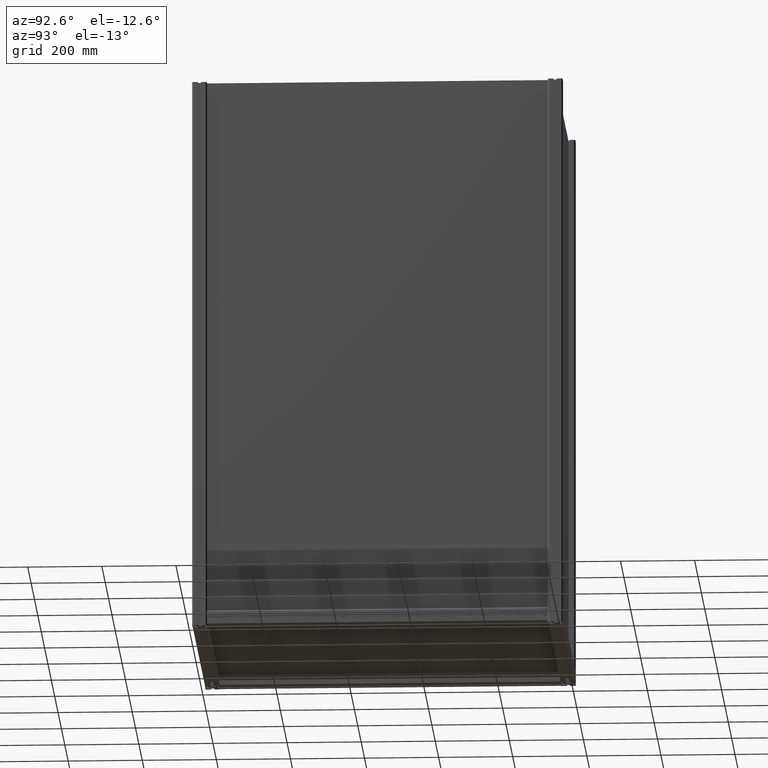
[diagram: clean part render]
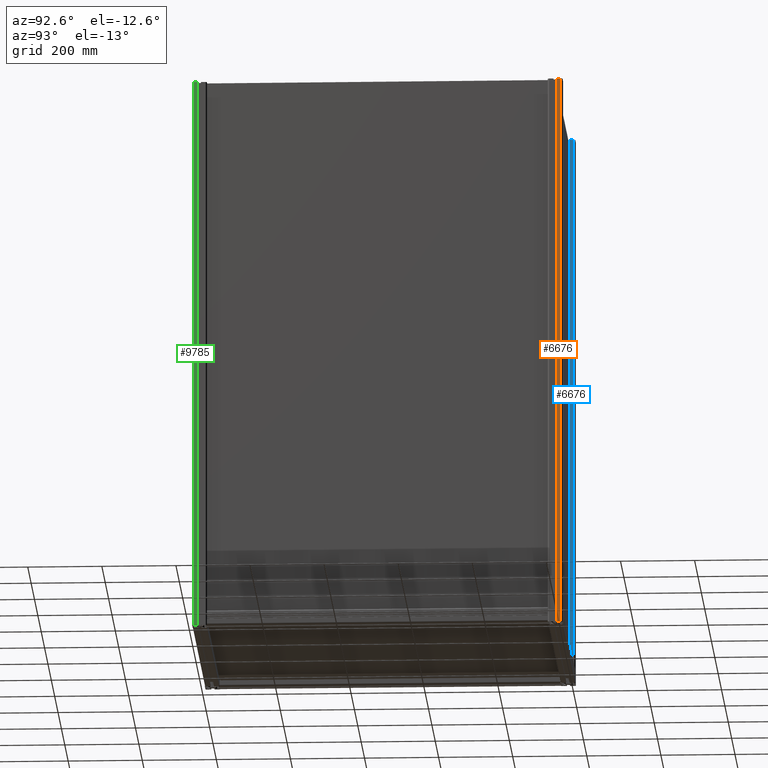
[diagram: same view with three faces highlighted in distinct colors, each labeled with its STEP entity id]
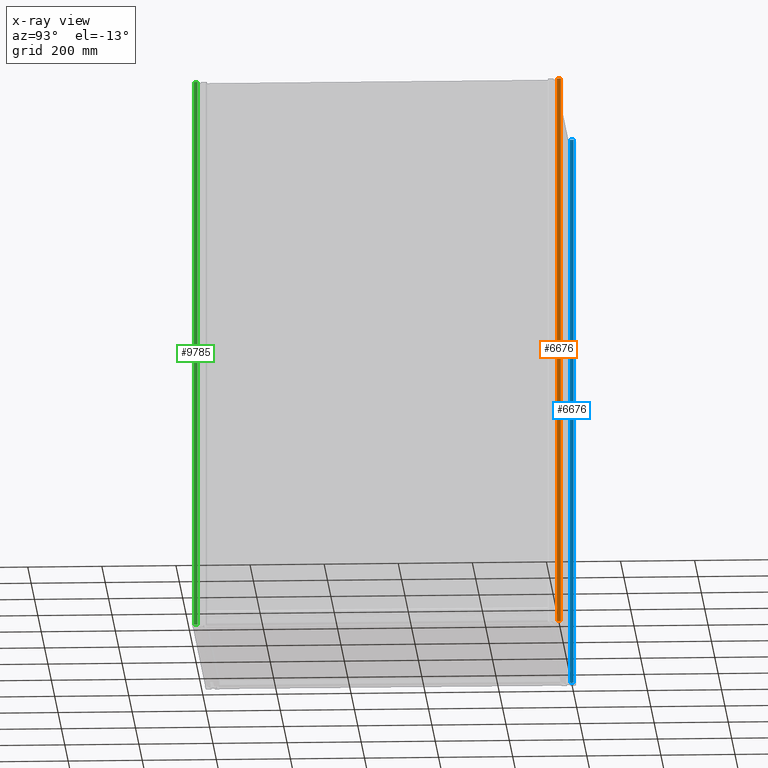
[diagram: x-ray of the same camera — body ghosted, the three highlighted faces saturated]
A machine part, auxiliary view with three faces highlighted in distinct colors.
The next image is the same camera in x-ray (body ghosted, the three faces saturated) — at least one of them is partly hidden behind the body in this view.
Their STEP definitions:

[orange] entity #6676 — the highlighted planar face has unit normal (-1, 0, 0).
#217 = DIRECTION ( 'NONE',  ( 0.000000000000000000, 0.000000000000000000, -1.000000000000000000 ) ) ;
#278 = AXIS2_PLACEMENT_3D ( 'NONE', #14896, #3072, #9593 ) ;
#703 = VECTOR ( 'NONE', #3665, 1000.000000000000000 ) ;
#845 = PLANE ( 'NONE',  #278 ) ;
#855 = ORIENTED_EDGE ( 'NONE', *, *, #6859, .F. ) ;
#1005 = CARTESIAN_POINT ( 'NONE',  ( 20.00000000000000000, 15.50000000000180123, -900.0000000000000000 ) ) ;
#1006 = VECTOR ( 'NONE', #217, 1000.000000000000000 ) ;
#1376 = EDGE_CURVE ( 'NONE', #7743, #8294, #10176, .T. ) ;
#3072 = DIRECTION ( 'NONE',  ( -1.000000000000000000, 0.000000000000000000, 0.000000000000000000 ) ) ;
#3665 = DIRECTION ( 'NONE',  ( 0.000000000000000000, -1.000000000000000000, 0.000000000000000000 ) ) ;
#4536 = CARTESIAN_POINT ( 'NONE',  ( 20.00000000000000000, 5.100000000000370903, -900.0000000000000000 ) ) ;
#4684 = VERTEX_POINT ( 'NONE', #4536 ) ;
#4804 = CARTESIAN_POINT ( 'NONE',  ( 20.00000000000000000, 5.100000000000370903, 800.0000000000000000 ) ) ;
#5364 = CARTESIAN_POINT ( 'NONE',  ( 20.00000000000000000, 5.100000000000370903, 600.0000000000000000 ) ) ;
#5738 = CARTESIAN_POINT ( 'NONE',  ( 20.00000000000000000, 15.50000000000180123, 600.0000000000000000 ) ) ;
#5873 = FACE_OUTER_BOUND ( 'NONE', #10682, .T. ) ;
#6215 = VERTEX_POINT ( 'NONE', #10315 ) ;
#6676 = ADVANCED_FACE ( 'NONE', ( #5873 ), #845, .F. ) ;
#6754 = LINE ( 'NONE', #4804, #12230 ) ;
#6859 = EDGE_CURVE ( 'NONE', #4684, #7743, #6754, .T. ) ;
#7064 = EDGE_CURVE ( 'NONE', #6215, #4684, #11764, .T. ) ;
#7743 = VERTEX_POINT ( 'NONE', #5364 ) ;
#8294 = VERTEX_POINT ( 'NONE', #5738 ) ;
#8865 = ORIENTED_EDGE ( 'NONE', *, *, #7064, .F. ) ;
#9476 = CARTESIAN_POINT ( 'NONE',  ( 20.00000000000000000, 5.100000000000370903, 600.0000000000000000 ) ) ;
#9593 = DIRECTION ( 'NONE',  ( 0.000000000000000000, 0.000000000000000000, 1.000000000000000000 ) ) ;
#10176 = LINE ( 'NONE', #9476, #10409 ) ;
#10315 = CARTESIAN_POINT ( 'NONE',  ( 20.00000000000000000, 15.50000000000180123, -900.0000000000000000 ) ) ;
#10409 = VECTOR ( 'NONE', #13222, 1000.000000000000000 ) ;
#10682 = EDGE_LOOP ( 'NONE', ( #14593, #855, #8865, #12084 ) ) ;
#11764 = LINE ( 'NONE', #1005, #703 ) ;
#12084 = ORIENTED_EDGE ( 'NONE', *, *, #12240, .F. ) ;
#12090 = LINE ( 'NONE', #15801, #1006 ) ;
#12230 = VECTOR ( 'NONE', #12580, 1000.000000000000000 ) ;
#12240 = EDGE_CURVE ( 'NONE', #8294, #6215, #12090, .T. ) ;
#12580 = DIRECTION ( 'NONE',  ( 0.000000000000000000, 0.000000000000000000, 1.000000000000000000 ) ) ;
#13222 = DIRECTION ( 'NONE',  ( 0.000000000000000000, 1.000000000000000000, 0.000000000000000000 ) ) ;
#14593 = ORIENTED_EDGE ( 'NONE', *, *, #1376, .F. ) ;
#14896 = CARTESIAN_POINT ( 'NONE',  ( 20.00000000000000000, 5.100000000000360245, 800.0000000000000000 ) ) ;
#15801 = CARTESIAN_POINT ( 'NONE',  ( 20.00000000000000000, 15.50000000000180123, 800.0000000000000000 ) ) ;

[blue] entity #6676 — the highlighted planar face has unit normal (-1, 0, 0).
#217 = DIRECTION ( 'NONE',  ( 0.000000000000000000, 0.000000000000000000, -1.000000000000000000 ) ) ;
#278 = AXIS2_PLACEMENT_3D ( 'NONE', #14896, #3072, #9593 ) ;
#703 = VECTOR ( 'NONE', #3665, 1000.000000000000000 ) ;
#845 = PLANE ( 'NONE',  #278 ) ;
#855 = ORIENTED_EDGE ( 'NONE', *, *, #6859, .F. ) ;
#1005 = CARTESIAN_POINT ( 'NONE',  ( 20.00000000000000000, 15.50000000000180123, -900.0000000000000000 ) ) ;
#1006 = VECTOR ( 'NONE', #217, 1000.000000000000000 ) ;
#1376 = EDGE_CURVE ( 'NONE', #7743, #8294, #10176, .T. ) ;
#3072 = DIRECTION ( 'NONE',  ( -1.000000000000000000, 0.000000000000000000, 0.000000000000000000 ) ) ;
#3665 = DIRECTION ( 'NONE',  ( 0.000000000000000000, -1.000000000000000000, 0.000000000000000000 ) ) ;
#4536 = CARTESIAN_POINT ( 'NONE',  ( 20.00000000000000000, 5.100000000000370903, -900.0000000000000000 ) ) ;
#4684 = VERTEX_POINT ( 'NONE', #4536 ) ;
#4804 = CARTESIAN_POINT ( 'NONE',  ( 20.00000000000000000, 5.100000000000370903, 800.0000000000000000 ) ) ;
#5364 = CARTESIAN_POINT ( 'NONE',  ( 20.00000000000000000, 5.100000000000370903, 600.0000000000000000 ) ) ;
#5738 = CARTESIAN_POINT ( 'NONE',  ( 20.00000000000000000, 15.50000000000180123, 600.0000000000000000 ) ) ;
#5873 = FACE_OUTER_BOUND ( 'NONE', #10682, .T. ) ;
#6215 = VERTEX_POINT ( 'NONE', #10315 ) ;
#6676 = ADVANCED_FACE ( 'NONE', ( #5873 ), #845, .F. ) ;
#6754 = LINE ( 'NONE', #4804, #12230 ) ;
#6859 = EDGE_CURVE ( 'NONE', #4684, #7743, #6754, .T. ) ;
#7064 = EDGE_CURVE ( 'NONE', #6215, #4684, #11764, .T. ) ;
#7743 = VERTEX_POINT ( 'NONE', #5364 ) ;
#8294 = VERTEX_POINT ( 'NONE', #5738 ) ;
#8865 = ORIENTED_EDGE ( 'NONE', *, *, #7064, .F. ) ;
#9476 = CARTESIAN_POINT ( 'NONE',  ( 20.00000000000000000, 5.100000000000370903, 600.0000000000000000 ) ) ;
#9593 = DIRECTION ( 'NONE',  ( 0.000000000000000000, 0.000000000000000000, 1.000000000000000000 ) ) ;
#10176 = LINE ( 'NONE', #9476, #10409 ) ;
#10315 = CARTESIAN_POINT ( 'NONE',  ( 20.00000000000000000, 15.50000000000180123, -900.0000000000000000 ) ) ;
#10409 = VECTOR ( 'NONE', #13222, 1000.000000000000000 ) ;
#10682 = EDGE_LOOP ( 'NONE', ( #14593, #855, #8865, #12084 ) ) ;
#11764 = LINE ( 'NONE', #1005, #703 ) ;
#12084 = ORIENTED_EDGE ( 'NONE', *, *, #12240, .F. ) ;
#12090 = LINE ( 'NONE', #15801, #1006 ) ;
#12230 = VECTOR ( 'NONE', #12580, 1000.000000000000000 ) ;
#12240 = EDGE_CURVE ( 'NONE', #8294, #6215, #12090, .T. ) ;
#12580 = DIRECTION ( 'NONE',  ( 0.000000000000000000, 0.000000000000000000, 1.000000000000000000 ) ) ;
#13222 = DIRECTION ( 'NONE',  ( 0.000000000000000000, 1.000000000000000000, 0.000000000000000000 ) ) ;
#14593 = ORIENTED_EDGE ( 'NONE', *, *, #1376, .F. ) ;
#14896 = CARTESIAN_POINT ( 'NONE',  ( 20.00000000000000000, 5.100000000000360245, 800.0000000000000000 ) ) ;
#15801 = CARTESIAN_POINT ( 'NONE',  ( 20.00000000000000000, 15.50000000000180123, 800.0000000000000000 ) ) ;

[green] entity #9785 — the highlighted planar face has unit normal (-1, 0, 0).
#128 = EDGE_CURVE ( 'NONE', #13258, #4745, #13808, .T. ) ;
#285 = CARTESIAN_POINT ( 'NONE',  ( -20.00000000000000000, 15.50000000000494893, 800.0000000000000000 ) ) ;
#352 = ORIENTED_EDGE ( 'NONE', *, *, #9618, .F. ) ;
#463 = LINE ( 'NONE', #285, #11329 ) ;
#635 = EDGE_CURVE ( 'NONE', #4745, #5543, #3280, .T. ) ;
#667 = CARTESIAN_POINT ( 'NONE',  ( -20.00000000000000000, 15.50000000000494893, 600.0000000000000000 ) ) ;
#1281 = CARTESIAN_POINT ( 'NONE',  ( -20.00000000000000000, 5.100000000000360245, 800.0000000000000000 ) ) ;
#2618 = DIRECTION ( 'NONE',  ( 0.000000000000000000, 0.000000000000000000, -1.000000000000000000 ) ) ;
#2621 = LINE ( 'NONE', #3480, #7959 ) ;
#3280 = LINE ( 'NONE', #1281, #8866 ) ;
#3480 = CARTESIAN_POINT ( 'NONE',  ( -20.00000000000000000, 5.100000000000360245, -900.0000000000000000 ) ) ;
#4022 = DIRECTION ( 'NONE',  ( 0.000000000000000000, 0.000000000000000000, 1.000000000000000000 ) ) ;
#4745 = VERTEX_POINT ( 'NONE', #14616 ) ;
#5543 = VERTEX_POINT ( 'NONE', #13683 ) ;
#6021 = ORIENTED_EDGE ( 'NONE', *, *, #128, .F. ) ;
#6214 = CARTESIAN_POINT ( 'NONE',  ( -20.00000000000000000, 15.50000000000494893, 600.0000000000000000 ) ) ;
#6586 = EDGE_LOOP ( 'NONE', ( #6021, #352, #14916, #9220 ) ) ;
#7170 = DIRECTION ( 'NONE',  ( 0.000000000000000000, -1.000000000000000000, 0.000000000000000000 ) ) ;
#7959 = VECTOR ( 'NONE', #16111, 1000.000000000000000 ) ;
#8161 = CARTESIAN_POINT ( 'NONE',  ( -20.00000000000000000, 15.50000000000494893, -900.0000000000000000 ) ) ;
#8260 = CARTESIAN_POINT ( 'NONE',  ( -20.00000000000000000, 15.50000000000494893, 800.0000000000000000 ) ) ;
#8370 = DIRECTION ( 'NONE',  ( 1.000000000000000000, 0.000000000000000000, 0.000000000000000000 ) ) ;
#8689 = VERTEX_POINT ( 'NONE', #8161 ) ;
#8866 = VECTOR ( 'NONE', #2618, 1000.000000000000000 ) ;
#9220 = ORIENTED_EDGE ( 'NONE', *, *, #635, .F. ) ;
#9618 = EDGE_CURVE ( 'NONE', #8689, #13258, #463, .T. ) ;
#9760 = AXIS2_PLACEMENT_3D ( 'NONE', #8260, #8370, #10034 ) ;
#9785 = ADVANCED_FACE ( 'NONE', ( #12196 ), #16183, .F. ) ;
#10034 = DIRECTION ( 'NONE',  ( 0.000000000000000000, 1.000000000000000000, 0.000000000000000000 ) ) ;
#11329 = VECTOR ( 'NONE', #4022, 1000.000000000000000 ) ;
#12196 = FACE_OUTER_BOUND ( 'NONE', #6586, .T. ) ;
#13258 = VERTEX_POINT ( 'NONE', #6214 ) ;
#13683 = CARTESIAN_POINT ( 'NONE',  ( -20.00000000000000000, 5.100000000000360245, -900.0000000000000000 ) ) ;
#13723 = VECTOR ( 'NONE', #7170, 1000.000000000000000 ) ;
#13808 = LINE ( 'NONE', #667, #13723 ) ;
#14616 = CARTESIAN_POINT ( 'NONE',  ( -20.00000000000000000, 5.100000000000360245, 600.0000000000000000 ) ) ;
#14916 = ORIENTED_EDGE ( 'NONE', *, *, #16568, .F. ) ;
#16111 = DIRECTION ( 'NONE',  ( 0.000000000000000000, 1.000000000000000000, 0.000000000000000000 ) ) ;
#16183 = PLANE ( 'NONE',  #9760 ) ;
#16568 = EDGE_CURVE ( 'NONE', #5543, #8689, #2621, .T. ) ;